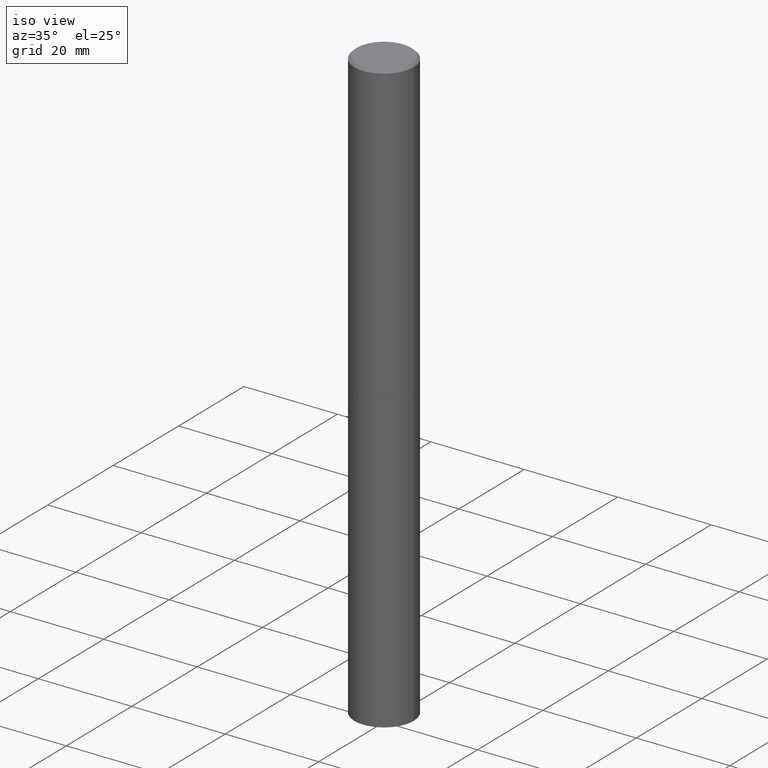
[diagram: clean part render]
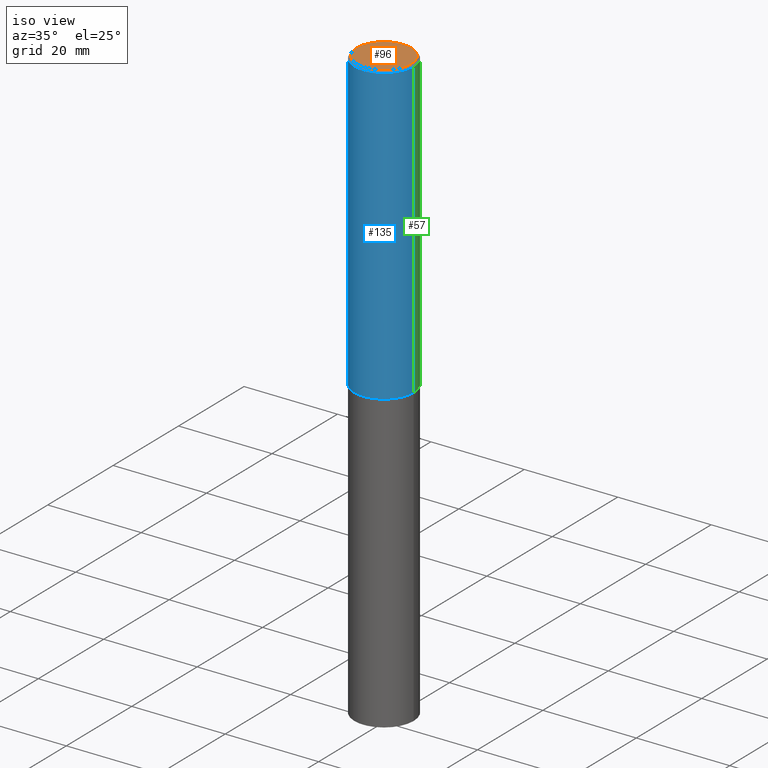
[diagram: same view with three faces highlighted in distinct colors, each labeled with its STEP entity id]
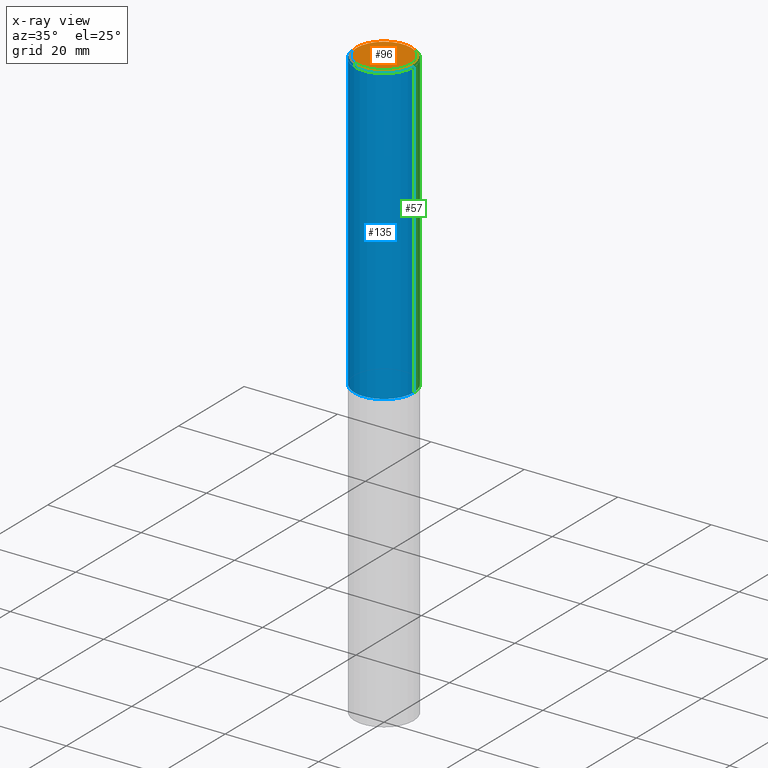
[diagram: x-ray of the same camera — body ghosted, the three highlighted faces saturated]
A machine part, iso view with three faces highlighted in distinct colors.
The next image is the same camera in x-ray (body ghosted, the three faces saturated) — at least one of them is partly hidden behind the body in this view.
Their STEP definitions:

[orange] entity #96 — the highlighted planar face has unit normal (0, -0, -1).
#18 = DIRECTION ( 'NONE',  ( 2.438088387897960049E-29, -3.491481338843145188E-15, -1.000000000000000000 ) ) ;
#21 = EDGE_CURVE ( 'NONE', #280, #317, #358, .T. ) ;
#27 = DIRECTION ( 'NONE',  ( -2.445468806185136597E-29, 3.491481338843145583E-15, 1.000000000000000000 ) ) ;
#68 = CARTESIAN_POINT ( 'NONE',  ( -1.043851414335219820E-46, 1.490343170380447200E-32, 4.268512490100411279E-18 ) ) ;
#96 = ADVANCED_FACE ( 'NONE', ( #156 ), #247, .F. ) ;
#104 = DIRECTION ( 'NONE',  ( -2.445468806185136597E-29, 3.491481338843145583E-15, 1.000000000000000000 ) ) ;
#122 = EDGE_CURVE ( 'NONE', #317, #280, #141, .T. ) ;
#136 = AXIS2_PLACEMENT_3D ( 'NONE', #160, #18, #297 ) ;
#141 = CIRCLE ( 'NONE', #345, 0.2299999999999997047 ) ;
#156 = FACE_OUTER_BOUND ( 'NONE', #363, .T. ) ;
#160 = CARTESIAN_POINT ( 'NONE',  ( 1.606081415867839095E-15, 0.2299999999999997047, -8.009064516888722925E-16 ) ) ;
#168 = ORIENTED_EDGE ( 'NONE', *, *, #21, .T. ) ;
#188 = CARTESIAN_POINT ( 'NONE',  ( -1.043851414335219820E-46, 1.490343170380447200E-32, 4.268512490100411279E-18 ) ) ;
#196 = CARTESIAN_POINT ( 'NONE',  ( -0.2299999999999997047, 1.640996229256270547E-15, 4.268512490089056766E-18 ) ) ;
#247 = PLANE ( 'NONE',  #136 ) ;
#269 = DIRECTION ( 'NONE',  ( 1.000000000000000000, -6.982962677686266711E-15, 4.876225828469315047E-29 ) ) ;
#280 = VERTEX_POINT ( 'NONE', #307 ) ;
#297 = DIRECTION ( 'NONE',  ( -1.000000000000000000, 6.982962677686265922E-15, -4.876176775795935793E-29 ) ) ;
#307 = CARTESIAN_POINT ( 'NONE',  ( 0.2299999999999997047, -1.681434332853597236E-15, 4.268512490111905999E-18 ) ) ;
#317 = VERTEX_POINT ( 'NONE', #196 ) ;
#318 = AXIS2_PLACEMENT_3D ( 'NONE', #68, #27, #269 ) ;
#320 = ORIENTED_EDGE ( 'NONE', *, *, #122, .T. ) ;
#330 = DIRECTION ( 'NONE',  ( 1.000000000000000000, -6.982962677686266711E-15, 4.876225828469315047E-29 ) ) ;
#345 = AXIS2_PLACEMENT_3D ( 'NONE', #188, #104, #330 ) ;
#358 = CIRCLE ( 'NONE', #318, 0.2299999999999997047 ) ;
#363 = EDGE_LOOP ( 'NONE', ( #320, #168 ) ) ;

[blue] entity #135 — the highlighted cylindrical surface (edge-blend (fillet) strip) has radius 6.35 mm, axis along (-0, 0, 1).
#4 = DIRECTION ( 'NONE',  ( 1.000000000000000000, -6.982962677686266711E-15, 0.000000000000000000 ) ) ;
#17 = DIRECTION ( 'NONE',  ( -2.445468806185136877E-29, 3.491481338843145188E-15, 1.000000000000000000 ) ) ;
#45 = CARTESIAN_POINT ( 'NONE',  ( -0.2499999999999997224, 1.675911042644701605E-15, -0.02000000000000005593 ) ) ;
#51 = DIRECTION ( 'NONE',  ( 1.000000000000000000, -6.982962677686266711E-15, 0.000000000000000000 ) ) ;
#83 = DIRECTION ( 'NONE',  ( -2.445468806185136597E-29, 3.491481338843145583E-15, 1.000000000000000000 ) ) ;
#95 = EDGE_LOOP ( 'NONE', ( #312, #238, #210, #263 ) ) ;
#116 = CARTESIAN_POINT ( 'NONE',  ( -0.2499999999999998612, 1.776356839400249479E-15, -1.229733772563725745E-29 ) ) ;
#135 = ADVANCED_FACE ( 'NONE', ( #214 ), #244, .T. ) ;
#152 = VERTEX_POINT ( 'NONE', #45 ) ;
#162 = CARTESIAN_POINT ( 'NONE',  ( 0.2500000000000000000, -1.047095253519058861E-14, -2.499000000000000110 ) ) ;
#163 = EDGE_CURVE ( 'NONE', #208, #205, #327, .T. ) ;
#169 = CARTESIAN_POINT ( 'NONE',  ( 6.111226546656657010E-29, -8.725211865769021935E-15, -2.499000000000000110 ) ) ;
#189 = DIRECTION ( 'NONE',  ( 1.000000000000000000, -6.982962677686266711E-15, 4.876176775795935793E-29 ) ) ;
#193 = LINE ( 'NONE', #116, #359 ) ;
#201 = DIRECTION ( 'NONE',  ( -2.445468806185136597E-29, 3.491481338843145583E-15, 1.000000000000000000 ) ) ;
#205 = VERTEX_POINT ( 'NONE', #221 ) ;
#208 = VERTEX_POINT ( 'NONE', #162 ) ;
#210 = ORIENTED_EDGE ( 'NONE', *, *, #163, .T. ) ;
#214 = FACE_OUTER_BOUND ( 'NONE', #95, .T. ) ;
#221 = CARTESIAN_POINT ( 'NONE',  ( 0.2499999999999997224, -1.784954126219744217E-15, -0.02000000000000005593 ) ) ;
#226 = AXIS2_PLACEMENT_3D ( 'NONE', #335, #83, #51 ) ;
#229 = VERTEX_POINT ( 'NONE', #360 ) ;
#230 = VECTOR ( 'NONE', #17, 39.37007874015748143 ) ;
#234 = EDGE_CURVE ( 'NONE', #229, #208, #239, .T. ) ;
#237 = AXIS2_PLACEMENT_3D ( 'NONE', #246, #331, #189 ) ;
#238 = ORIENTED_EDGE ( 'NONE', *, *, #234, .T. ) ;
#239 = CIRCLE ( 'NONE', #340, 0.2500000000000000000 ) ;
#244 = CYLINDRICAL_SURFACE ( 'NONE', #237, 0.2499999999999998612 ) ;
#246 = CARTESIAN_POINT ( 'NONE',  ( 0.000000000000000000, 0.000000000000000000, 0.000000000000000000 ) ) ;
#263 = ORIENTED_EDGE ( 'NONE', *, *, #347, .F. ) ;
#271 = CARTESIAN_POINT ( 'NONE',  ( 0.2499999999999998612, -1.745740669421565692E-15, 1.219044193948983248E-29 ) ) ;
#309 = CIRCLE ( 'NONE', #226, 0.2499999999999997224 ) ;
#311 = DIRECTION ( 'NONE',  ( -2.445468806185136877E-29, 3.491481338843145188E-15, 1.000000000000000000 ) ) ;
#312 = ORIENTED_EDGE ( 'NONE', *, *, #323, .F. ) ;
#323 = EDGE_CURVE ( 'NONE', #229, #152, #193, .T. ) ;
#327 = LINE ( 'NONE', #271, #230 ) ;
#331 = DIRECTION ( 'NONE',  ( -2.445468806185136597E-29, 3.491481338843145583E-15, 1.000000000000000000 ) ) ;
#335 = CARTESIAN_POINT ( 'NONE',  ( 4.890937612370287172E-31, -6.982962677686310098E-17, -0.02000000000000005593 ) ) ;
#340 = AXIS2_PLACEMENT_3D ( 'NONE', #169, #201, #4 ) ;
#347 = EDGE_CURVE ( 'NONE', #152, #205, #309, .T. ) ;
#359 = VECTOR ( 'NONE', #311, 39.37007874015748143 ) ;
#360 = CARTESIAN_POINT ( 'NONE',  ( -0.2499999999999999722, -2.621163906872689391E-15, -2.499000000000000110 ) ) ;

[green] entity #57 — the highlighted cylindrical surface (edge-blend (fillet) strip) has radius 6.35 mm, axis along (-0, 0, 1).
#17 = DIRECTION ( 'NONE',  ( -2.445468806185136877E-29, 3.491481338843145188E-15, 1.000000000000000000 ) ) ;
#35 = ORIENTED_EDGE ( 'NONE', *, *, #323, .T. ) ;
#40 = AXIS2_PLACEMENT_3D ( 'NONE', #253, #362, #198 ) ;
#44 = DIRECTION ( 'NONE',  ( -2.445468806185136597E-29, 3.491481338843145583E-15, 1.000000000000000000 ) ) ;
#45 = CARTESIAN_POINT ( 'NONE',  ( -0.2499999999999997224, 1.675911042644701605E-15, -0.02000000000000005593 ) ) ;
#47 = CARTESIAN_POINT ( 'NONE',  ( 4.890937612370287172E-31, -6.982962677686310098E-17, -0.02000000000000005593 ) ) ;
#57 = ADVANCED_FACE ( 'NONE', ( #158 ), #190, .T. ) ;
#88 = AXIS2_PLACEMENT_3D ( 'NONE', #130, #44, #218 ) ;
#101 = AXIS2_PLACEMENT_3D ( 'NONE', #47, #248, #357 ) ;
#116 = CARTESIAN_POINT ( 'NONE',  ( -0.2499999999999998612, 1.776356839400249479E-15, -1.229733772563725745E-29 ) ) ;
#130 = CARTESIAN_POINT ( 'NONE',  ( 0.000000000000000000, 0.000000000000000000, 0.000000000000000000 ) ) ;
#149 = EDGE_LOOP ( 'NONE', ( #150, #35, #278, #197 ) ) ;
#150 = ORIENTED_EDGE ( 'NONE', *, *, #328, .T. ) ;
#152 = VERTEX_POINT ( 'NONE', #45 ) ;
#153 = CIRCLE ( 'NONE', #40, 0.2500000000000000000 ) ;
#158 = FACE_OUTER_BOUND ( 'NONE', #149, .T. ) ;
#161 = CIRCLE ( 'NONE', #101, 0.2499999999999997224 ) ;
#162 = CARTESIAN_POINT ( 'NONE',  ( 0.2500000000000000000, -1.047095253519058861E-14, -2.499000000000000110 ) ) ;
#163 = EDGE_CURVE ( 'NONE', #208, #205, #327, .T. ) ;
#190 = CYLINDRICAL_SURFACE ( 'NONE', #88, 0.2499999999999998612 ) ;
#193 = LINE ( 'NONE', #116, #359 ) ;
#197 = ORIENTED_EDGE ( 'NONE', *, *, #163, .F. ) ;
#198 = DIRECTION ( 'NONE',  ( 1.000000000000000000, -6.982962677686266711E-15, 0.000000000000000000 ) ) ;
#199 = EDGE_CURVE ( 'NONE', #205, #152, #161, .T. ) ;
#205 = VERTEX_POINT ( 'NONE', #221 ) ;
#208 = VERTEX_POINT ( 'NONE', #162 ) ;
#218 = DIRECTION ( 'NONE',  ( 1.000000000000000000, -6.982962677686266711E-15, 4.876176775795935793E-29 ) ) ;
#221 = CARTESIAN_POINT ( 'NONE',  ( 0.2499999999999997224, -1.784954126219744217E-15, -0.02000000000000005593 ) ) ;
#229 = VERTEX_POINT ( 'NONE', #360 ) ;
#230 = VECTOR ( 'NONE', #17, 39.37007874015748143 ) ;
#248 = DIRECTION ( 'NONE',  ( -2.445468806185136597E-29, 3.491481338843145583E-15, 1.000000000000000000 ) ) ;
#253 = CARTESIAN_POINT ( 'NONE',  ( 6.111226546656657010E-29, -8.725211865769021935E-15, -2.499000000000000110 ) ) ;
#271 = CARTESIAN_POINT ( 'NONE',  ( 0.2499999999999998612, -1.745740669421565692E-15, 1.219044193948983248E-29 ) ) ;
#278 = ORIENTED_EDGE ( 'NONE', *, *, #199, .F. ) ;
#311 = DIRECTION ( 'NONE',  ( -2.445468806185136877E-29, 3.491481338843145188E-15, 1.000000000000000000 ) ) ;
#323 = EDGE_CURVE ( 'NONE', #229, #152, #193, .T. ) ;
#327 = LINE ( 'NONE', #271, #230 ) ;
#328 = EDGE_CURVE ( 'NONE', #208, #229, #153, .T. ) ;
#357 = DIRECTION ( 'NONE',  ( 1.000000000000000000, -6.982962677686266711E-15, 0.000000000000000000 ) ) ;
#359 = VECTOR ( 'NONE', #311, 39.37007874015748143 ) ;
#360 = CARTESIAN_POINT ( 'NONE',  ( -0.2499999999999999722, -2.621163906872689391E-15, -2.499000000000000110 ) ) ;
#362 = DIRECTION ( 'NONE',  ( -2.445468806185136597E-29, 3.491481338843145583E-15, 1.000000000000000000 ) ) ;